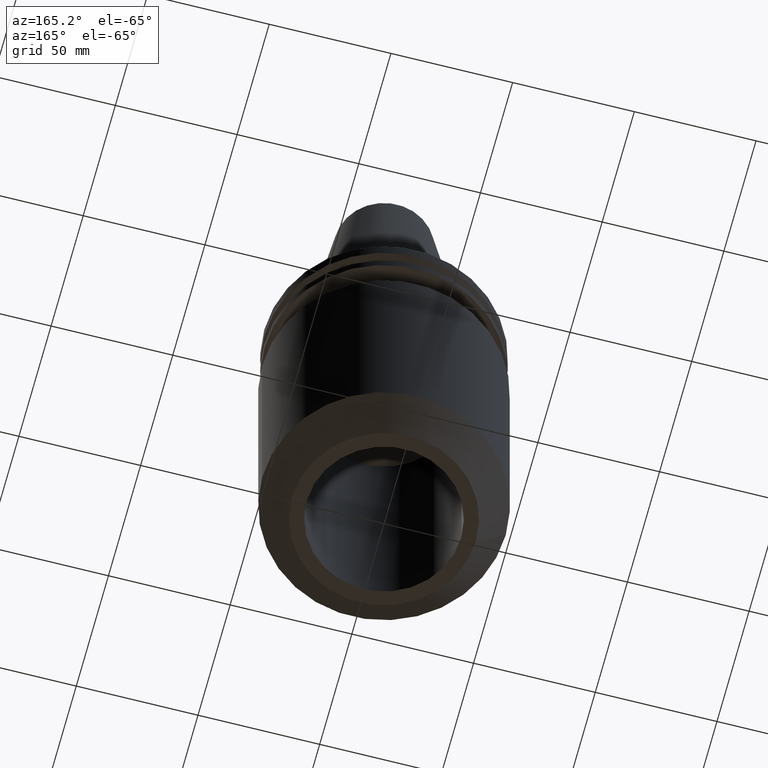
[diagram: clean part render]
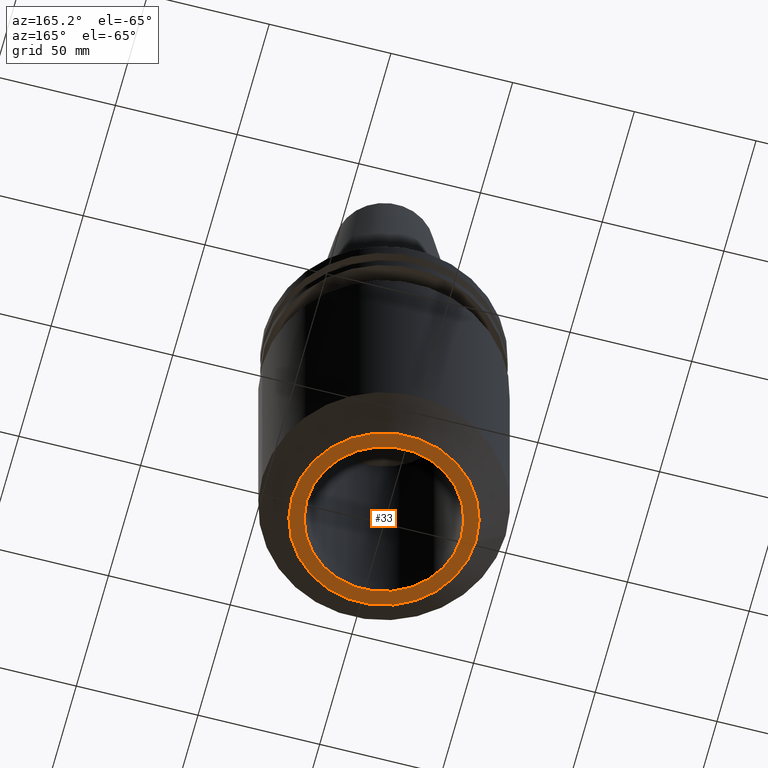
[diagram: same view with one face highlighted and labeled with its STEP entity id]
A machine part, auxiliary view. The second image highlights one B-rep face of the part: STEP entity #33.
In plain terms, the highlighted planar face has unit normal (0, -0, 1).
Its self-contained STEP definition (entity closure, byte-faithful):
#1 = ORIENTED_EDGE ( 'NONE', *, *, #408, .F. ) ;
#7 = DIRECTION ( 'NONE',  ( 1.000000000000000000, 0.000000000000000000, 0.000000000000000000 ) ) ;
#8 = AXIS2_PLACEMENT_3D ( 'NONE', #68, #146, #597 ) ;
#33 = ADVANCED_FACE ( 'NONE', ( #574, #53 ), #831, .F. ) ;
#53 = FACE_BOUND ( 'NONE', #621, .T. ) ;
#68 = CARTESIAN_POINT ( 'NONE',  ( 0.000000000000000000, 0.000000000000000000, -152.4000000000000057 ) ) ;
#85 = DIRECTION ( 'NONE',  ( -0.000000000000000000, -0.000000000000000000, 1.000000000000000000 ) ) ;
#125 = DIRECTION ( 'NONE',  ( 0.000000000000000000, -0.000000000000000000, 1.000000000000000000 ) ) ;
#131 = VERTEX_POINT ( 'NONE', #397 ) ;
#146 = DIRECTION ( 'NONE',  ( -0.000000000000000000, -0.000000000000000000, 1.000000000000000000 ) ) ;
#159 = VERTEX_POINT ( 'NONE', #450 ) ;
#246 = DIRECTION ( 'NONE',  ( 1.000000000000000000, 0.000000000000000000, 0.000000000000000000 ) ) ;
#275 = CARTESIAN_POINT ( 'NONE',  ( 0.000000000000000000, 0.000000000000000000, -152.4000000000000057 ) ) ;
#320 = CIRCLE ( 'NONE', #8, 37.79999999999999005 ) ;
#339 = VERTEX_POINT ( 'NONE', #495 ) ;
#381 = CARTESIAN_POINT ( 'NONE',  ( 0.000000000000000000, 0.000000000000000000, -152.4000000000000057 ) ) ;
#397 = CARTESIAN_POINT ( 'NONE',  ( -31.75000000000000000, 3.888253587292846476E-15, -152.4000000000000057 ) ) ;
#408 = EDGE_CURVE ( 'NONE', #159, #339, #320, .T. ) ;
#432 = CARTESIAN_POINT ( 'NONE',  ( 0.000000000000000000, 31.75000000000000000, -152.4000000000000057 ) ) ;
#450 = CARTESIAN_POINT ( 'NONE',  ( 37.79999999999999005, 0.000000000000000000, -152.4000000000000057 ) ) ;
#451 = AXIS2_PLACEMENT_3D ( 'NONE', #467, #85, #463 ) ;
#455 = EDGE_CURVE ( 'NONE', #339, #159, #517, .T. ) ;
#463 = DIRECTION ( 'NONE',  ( 1.000000000000000000, 0.000000000000000000, 0.000000000000000000 ) ) ;
#467 = CARTESIAN_POINT ( 'NONE',  ( 0.000000000000000000, 0.000000000000000000, -152.4000000000000057 ) ) ;
#492 = ORIENTED_EDGE ( 'NONE', *, *, #455, .F. ) ;
#495 = CARTESIAN_POINT ( 'NONE',  ( -37.79999999999999005, 5.376199448256880261E-15, -152.4000000000000057 ) ) ;
#499 = EDGE_LOOP ( 'NONE', ( #1, #492 ) ) ;
#517 = CIRCLE ( 'NONE', #807, 37.79999999999999005 ) ;
#525 = ORIENTED_EDGE ( 'NONE', *, *, #556, .T. ) ;
#536 = VERTEX_POINT ( 'NONE', #802 ) ;
#556 = EDGE_CURVE ( 'NONE', #131, #536, #707, .T. ) ;
#574 = FACE_OUTER_BOUND ( 'NONE', #499, .T. ) ;
#597 = DIRECTION ( 'NONE',  ( 1.000000000000000000, 0.000000000000000000, 0.000000000000000000 ) ) ;
#621 = EDGE_LOOP ( 'NONE', ( #820, #525 ) ) ;
#638 = AXIS2_PLACEMENT_3D ( 'NONE', #432, #125, #246 ) ;
#649 = DIRECTION ( 'NONE',  ( -0.000000000000000000, -0.000000000000000000, 1.000000000000000000 ) ) ;
#655 = CIRCLE ( 'NONE', #810, 31.75000000000000000 ) ;
#707 = CIRCLE ( 'NONE', #451, 31.75000000000000000 ) ;
#738 = DIRECTION ( 'NONE',  ( -0.000000000000000000, -0.000000000000000000, 1.000000000000000000 ) ) ;
#802 = CARTESIAN_POINT ( 'NONE',  ( 31.75000000000000000, 0.000000000000000000, -152.4000000000000057 ) ) ;
#807 = AXIS2_PLACEMENT_3D ( 'NONE', #275, #738, #7 ) ;
#810 = AXIS2_PLACEMENT_3D ( 'NONE', #381, #649, #845 ) ;
#820 = ORIENTED_EDGE ( 'NONE', *, *, #826, .T. ) ;
#826 = EDGE_CURVE ( 'NONE', #536, #131, #655, .T. ) ;
#831 = PLANE ( 'NONE',  #638 ) ;
#845 = DIRECTION ( 'NONE',  ( 1.000000000000000000, 0.000000000000000000, 0.000000000000000000 ) ) ;